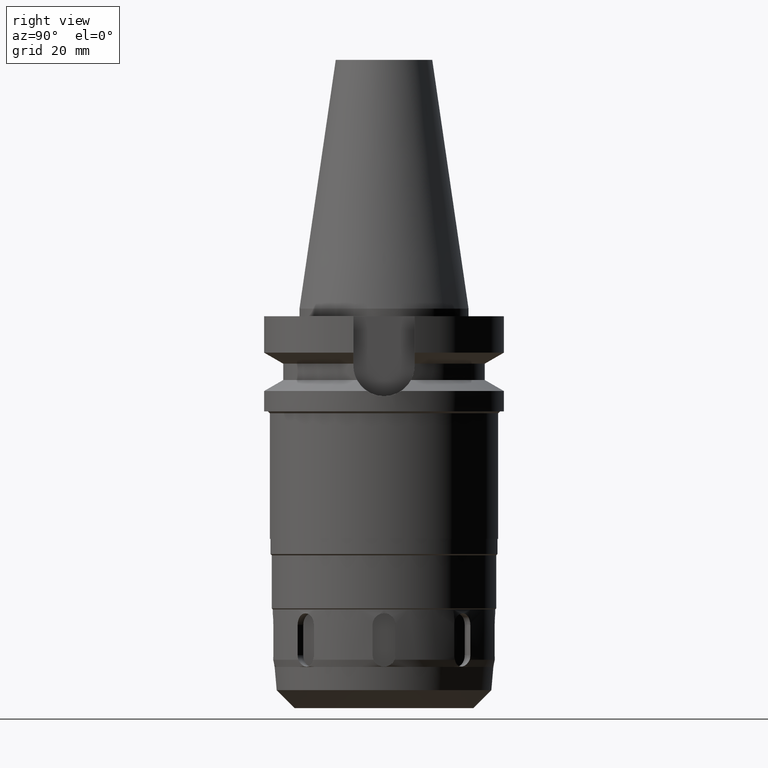
[diagram: clean part render]
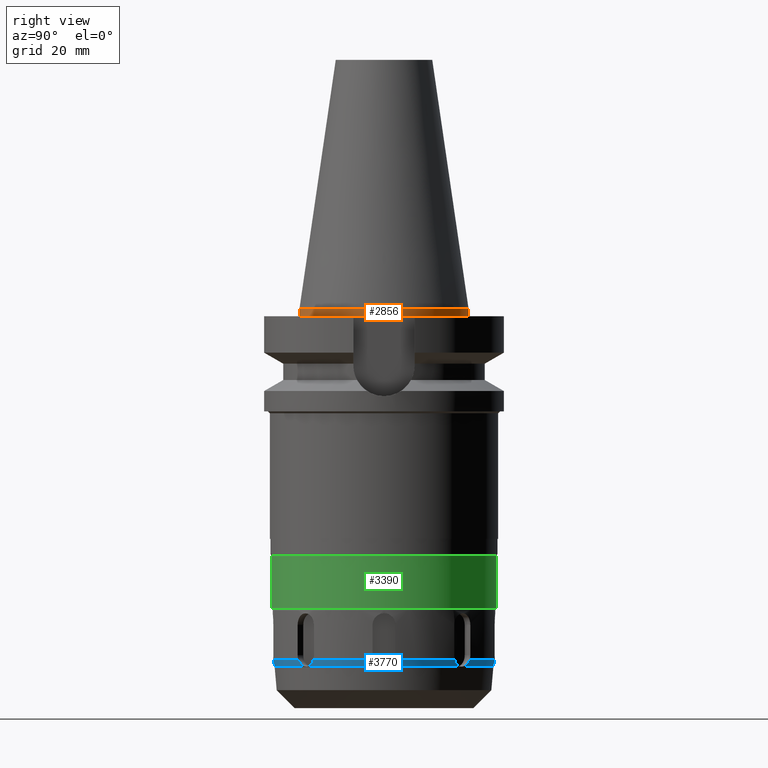
[diagram: same view with three faces highlighted in distinct colors, each labeled with its STEP entity id]
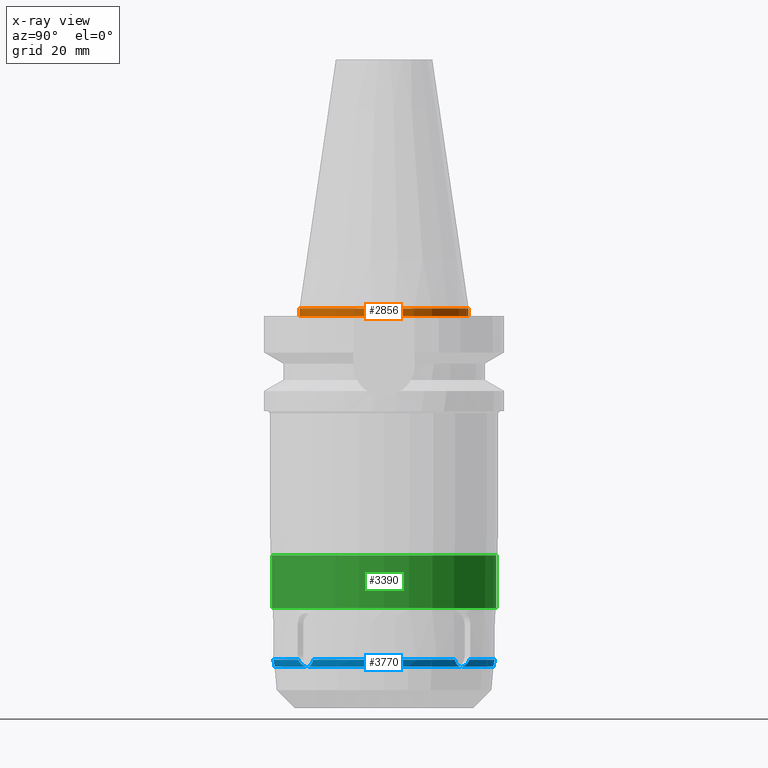
[diagram: x-ray of the same camera — body ghosted, the three highlighted faces saturated]
A machine part, right view with three faces highlighted in distinct colors.
The next image is the same camera in x-ray (body ghosted, the three faces saturated) — at least one of them is partly hidden behind the body in this view.
Their STEP definitions:

[orange] entity #2856 — the highlighted cylindrical surface (partial cylindrical patch) has radius 22.225 mm, axis along (0, 0, -1).
#72=CARTESIAN_POINT('',(0.E0,1.625106302469E-14,2.842170943040E-14));
#73=DIRECTION('',(0.E0,0.E0,-1.E0));
#74=DIRECTION('',(0.E0,1.E0,0.E0));
#75=AXIS2_PLACEMENT_3D('',#72,#73,#74);
#80=DIRECTION('',(0.E0,8.171241461241E-14,-1.E0));
#81=VECTOR('',#80,2.E0);
#82=CARTESIAN_POINT('',(0.E0,2.2225E1,6.394884621841E-14));
#83=LINE('',#82,#81);
#87=DIRECTION('',(0.E0,-8.704148513061E-14,-1.E0));
#88=VECTOR('',#87,2.E0);
#89=CARTESIAN_POINT('',(0.E0,-2.2225E1,6.394884621841E-14));
#90=LINE('',#89,#88);
#154=CARTESIAN_POINT('',(0.E0,2.129905713077E-14,-2.E0));
#155=DIRECTION('',(0.E0,0.E0,1.E0));
#156=DIRECTION('',(0.E0,-1.E0,0.E0));
#157=AXIS2_PLACEMENT_3D('',#154,#155,#156);
#2714=CARTESIAN_POINT('',(0.E0,-2.2225E1,-2.E0));
#2715=CARTESIAN_POINT('',(0.E0,2.2225E1,-2.E0));
#2716=VERTEX_POINT('',#2714);
#2717=VERTEX_POINT('',#2715);
#2718=CARTESIAN_POINT('',(0.E0,2.2225E1,6.394884621841E-14));
#2719=VERTEX_POINT('',#2718);
#2720=CARTESIAN_POINT('',(0.E0,-2.2225E1,6.394884621841E-14));
#2721=VERTEX_POINT('',#2720);
#2842=CARTESIAN_POINT('',(0.E0,2.129905713077E-14,7.392E1));
#2843=DIRECTION('',(0.E0,0.E0,-1.E0));
#2844=DIRECTION('',(0.E0,-1.E0,0.E0));
#2845=AXIS2_PLACEMENT_3D('',#2842,#2843,#2844);
#2846=CYLINDRICAL_SURFACE('',#2845,2.2225E1);
#2848=ORIENTED_EDGE('',*,*,#2847,.T.);
#2850=ORIENTED_EDGE('',*,*,#2849,.F.);
#2852=ORIENTED_EDGE('',*,*,#2851,.F.);
#2853=ORIENTED_EDGE('',*,*,#2835,.F.);
#2854=EDGE_LOOP('',(#2848,#2850,#2852,#2853));
#2855=FACE_OUTER_BOUND('',#2854,.F.);
#76=CIRCLE('',#75,2.2225E1);
#158=CIRCLE('',#157,2.2225E1);
#2835=EDGE_CURVE('',#2719,#2721,#76,.T.);
#2847=EDGE_CURVE('',#2719,#2717,#83,.T.);
#2849=EDGE_CURVE('',#2716,#2717,#158,.T.);
#2851=EDGE_CURVE('',#2721,#2716,#90,.T.);
#2856=ADVANCED_FACE('',(#2855),#2846,.T.);

[blue] entity #3770 — the highlighted conical surface has half-angle 15 deg.
#1212=DIRECTION('',(-1.461540232380E-13,2.588190450750E-1,-9.659258262964E-1));
#1213=VECTOR('',#1212,6.639877850089E-2);
#1214=CARTESIAN_POINT('',(3.171910622777E-14,-2.876769145362E1,-9.41E1));
#1215=LINE('',#1214,#1213);
#1408=CARTESIAN_POINT('',(3.171910622777E-14,-2.876769145362E1,-9.41E1));
#1409=CARTESIAN_POINT('',(2.916420865706E-1,-2.876769145362E1,-9.41E1));
#1410=CARTESIAN_POINT('',(8.733241856677E-1,-2.878149558825E1,
-9.401442141191E1));
#1411=CARTESIAN_POINT('',(1.668632335869E0,-2.884488101153E1,
-9.364325486813E1));
#1412=CARTESIAN_POINT('',(2.321573261760E0,-2.895365679301E1,
-9.306561245432E1));
#1413=CARTESIAN_POINT('',(2.632925642694E0,-2.905953456797E1,
-9.256734607412E1));
#1414=CARTESIAN_POINT('',(2.749621114391E0,-2.912051862817E1,
-9.229981930624E1));
#1419=CARTESIAN_POINT('',(0.E0,0.E0,-9.23E1));
#1420=DIRECTION('',(0.E0,0.E0,1.E0));
#1421=DIRECTION('',(9.400123039903E-2,-9.955720811089E-1,0.E0));
#1422=AXIS2_PLACEMENT_3D('',#1419,#1420,#1421);
#1427=CARTESIAN_POINT('',(1.864707272350E1,-2.253550994364E1,
-9.229999787879E1));
#1428=CARTESIAN_POINT('',(1.868687880771E1,-2.240867147278E1,
-9.256999462087E1));
#1429=CARTESIAN_POINT('',(1.883410983167E1,-2.211083703182E1,
-9.307157100933E1));
#1430=CARTESIAN_POINT('',(1.922056489597E1,-2.157132352922E1,
-9.364703445922E1));
#1431=CARTESIAN_POINT('',(1.973681403621E1,-2.096605792632E1,
-9.401576067502E1));
#1432=CARTESIAN_POINT('',(2.034316461003E1,-2.033059780289E1,
-9.414336519568E1));
#1433=CARTESIAN_POINT('',(2.097794582743E1,-1.972610029464E1,
-9.401070479389E1));
#1434=CARTESIAN_POINT('',(2.157985690144E1,-1.921393765261E1,
-9.363950793881E1));
#1435=CARTESIAN_POINT('',(2.211505136442E1,-1.883177418336E1,
-9.306511868998E1));
#1436=CARTESIAN_POINT('',(2.240986661198E1,-1.868646162105E1,
-9.256753119252E1));
#1437=CARTESIAN_POINT('',(2.253559193991E1,-1.864704043969E1,
-9.229981935066E1));
#1442=CARTESIAN_POINT('',(0.E0,0.E0,-9.23E1));
#1443=DIRECTION('',(0.E0,0.E0,1.E0));
#1444=DIRECTION('',(7.704446797801E-1,-6.375068590992E-1,0.E0));
#1445=AXIS2_PLACEMENT_3D('',#1442,#1443,#1444);
#1450=CARTESIAN_POINT('',(2.912048346437E1,-2.749540359240E0,
-9.229999789235E1));
#1451=CARTESIAN_POINT('',(2.905891428475E1,-2.631651267274E0,
-9.257011743052E1));
#1452=CARTESIAN_POINT('',(2.895241524558E1,-2.316777731762E0,
-9.307175807086E1));
#1453=CARTESIAN_POINT('',(2.884428176145E1,-1.662650606222E0,
-9.364670310950E1));
#1454=CARTESIAN_POINT('',(2.878128968941E1,-8.696478288814E-1,
-9.401567509124E1));
#1455=CARTESIAN_POINT('',(2.876068405268E1,8.998264901856E-3,
-9.414342455595E1));
#1456=CARTESIAN_POINT('',(2.878213121016E1,8.858342650023E-1,
-9.401055105426E1));
#1457=CARTESIAN_POINT('',(2.884564795449E1,1.673528184213E0,-9.363907298303E1));
#1458=CARTESIAN_POINT('',(2.895377739442E1,2.321545405982E0,-9.306513785773E1));
#1459=CARTESIAN_POINT('',(2.905948204926E1,2.632825157140E0,-9.256757649385E1));
#1460=CARTESIAN_POINT('',(2.912051862278E1,2.749621134106E0,-9.229981935225E1));
#1465=CARTESIAN_POINT('',(0.E0,0.E0,-9.23E1));
#1466=DIRECTION('',(0.E0,0.E0,1.E0));
#1467=DIRECTION('',(9.955720807236E-1,9.400123447959E-2,0.E0));
#1468=AXIS2_PLACEMENT_3D('',#1465,#1466,#1467);
#1473=CARTESIAN_POINT('',(2.253550996223E1,1.864707269594E1,-9.229999789242E1));
#1474=CARTESIAN_POINT('',(2.240868316786E1,1.868687511843E1,-9.256996977265E1));
#1475=CARTESIAN_POINT('',(2.211088218241E1,1.883408746226E1,-9.307149416766E1));
#1476=CARTESIAN_POINT('',(2.157148658476E1,1.922044002872E1,-9.364688500609E1));
#1477=CARTESIAN_POINT('',(2.096630127031E1,1.973659417205E1,-9.401565914123E1));
#1478=CARTESIAN_POINT('',(2.033084409574E1,2.034291792647E1,-9.414336692521E1));
#1479=CARTESIAN_POINT('',(1.972631014839E1,2.097771272904E1,-9.401080512013E1));
#1480=CARTESIAN_POINT('',(1.921404983291E1,2.157970928106E1,-9.363964603724E1));
#1481=CARTESIAN_POINT('',(1.883178963123E1,2.211501791657E1,-9.306517873436E1));
#1482=CARTESIAN_POINT('',(1.868646415396E1,2.240985859401E1,-9.256754821689E1));
#1483=CARTESIAN_POINT('',(1.864704046771E1,2.253559192112E1,-9.229981933434E1));
#1488=CARTESIAN_POINT('',(0.E0,0.E0,-9.23E1));
#1489=DIRECTION('',(0.E0,0.E0,1.E0));
#1490=DIRECTION('',(6.375068622919E-1,7.704446771383E-1,0.E0));
#1491=AXIS2_PLACEMENT_3D('',#1488,#1489,#1490);
#1496=CARTESIAN_POINT('',(2.749540325158E0,2.912048347092E1,-9.229999787978E1));
#1497=CARTESIAN_POINT('',(2.632784061556E0,2.905950592360E1,-9.256752177581E1));
#1498=CARTESIAN_POINT('',(2.320968278700E0,2.895335639821E1,-9.306696334785E1));
#1499=CARTESIAN_POINT('',(1.663259646725E0,2.884413819264E1,-9.364736411842E1));
#1500=CARTESIAN_POINT('',(8.646143369824E-1,2.878111251024E1,
-9.401678596995E1));
#1501=CARTESIAN_POINT('',(2.878474372009E-1,2.876769145362E1,-9.41E1));
#1502=CARTESIAN_POINT('',(0.E0,2.876769145362E1,-9.41E1));
#1507=DIRECTION('',(1.765450329034E-14,-2.588190450750E-1,-9.659258262964E-1));
#1508=VECTOR('',#1507,6.639877850089E-2);
#1509=CARTESIAN_POINT('',(0.E0,2.876769145362E1,-9.41E1));
#1510=LINE('',#1509,#1508);
#2124=CARTESIAN_POINT('',(0.E0,0.E0,-9.416413629499E1));
#2125=DIRECTION('',(0.E0,0.E0,1.E0));
#2126=DIRECTION('',(0.E0,-1.E0,0.E0));
#2127=AXIS2_PLACEMENT_3D('',#2124,#2125,#2126);
#2497=CARTESIAN_POINT('',(0.E0,2.875050618518E1,-9.416413629499E1));
#2498=VERTEX_POINT('',#2497);
#2499=CARTESIAN_POINT('',(4.755023676091E-14,-2.875050618518E1,
-9.416413629499E1));
#2500=VERTEX_POINT('',#2499);
#2501=VERTEX_POINT('',#1408);
#2502=VERTEX_POINT('',#1414);
#2503=CARTESIAN_POINT('',(1.864708239233E1,-2.253550128695E1,-9.23E1));
#2504=VERTEX_POINT('',#2503);
#2505=VERTEX_POINT('',#1437);
#2506=CARTESIAN_POINT('',(2.912048417547E1,-2.749527484227E0,-9.23E1));
#2507=VERTEX_POINT('',#2506);
#2508=VERTEX_POINT('',#1460);
#2509=CARTESIAN_POINT('',(2.253550136107E1,1.864708230275E1,-9.23E1));
#2510=VERTEX_POINT('',#2509);
#2511=VERTEX_POINT('',#1483);
#2512=CARTESIAN_POINT('',(2.749527365517E0,2.912048418668E1,-9.23E1));
#2513=VERTEX_POINT('',#2512);
#2514=VERTEX_POINT('',#1502);
#3742=CARTESIAN_POINT('',(0.E0,0.E0,-9.323206814750E1));
#3743=DIRECTION('',(0.E0,0.E0,1.E0));
#3744=DIRECTION('',(0.E0,1.E0,0.E0));
#3745=AXIS2_PLACEMENT_3D('',#3742,#3743,#3744);
#3746=CONICAL_SURFACE('',#3745,2.900025309259E1,1.5E1);
#3747=ORIENTED_EDGE('',*,*,#3725,.T.);
#3749=ORIENTED_EDGE('',*,*,#3748,.T.);
#3751=ORIENTED_EDGE('',*,*,#3750,.T.);
#3753=ORIENTED_EDGE('',*,*,#3752,.T.);
#3755=ORIENTED_EDGE('',*,*,#3754,.T.);
#3757=ORIENTED_EDGE('',*,*,#3756,.T.);
#3759=ORIENTED_EDGE('',*,*,#3758,.T.);
#3761=ORIENTED_EDGE('',*,*,#3760,.T.);
#3763=ORIENTED_EDGE('',*,*,#3762,.T.);
#3764=ORIENTED_EDGE('',*,*,#3558,.T.);
#3766=ORIENTED_EDGE('',*,*,#3765,.F.);
#3767=ORIENTED_EDGE('',*,*,#3554,.F.);
#3768=EDGE_LOOP('',(#3747,#3749,#3751,#3753,#3755,#3757,#3759,#3761,#3763,#3764,
#3766,#3767));
#3769=FACE_OUTER_BOUND('',#3768,.F.);
#1415=B_SPLINE_CURVE_WITH_KNOTS('',3,(#1408,#1409,#1410,#1411,#1412,#1413,
#1414),.UNSPECIFIED.,.F.,.F.,(4,1,1,1,4),(0.E0,2.5E-1,5.E-1,7.5E-1,1.E0),
.UNSPECIFIED.);
#1423=CIRCLE('',#1422,2.925E1);
#1438=B_SPLINE_CURVE_WITH_KNOTS('',3,(#1427,#1428,#1429,#1430,#1431,#1432,#1433,
#1434,#1435,#1436,#1437),.UNSPECIFIED.,.F.,.F.,(4,1,1,1,1,1,1,1,4),(0.E0,
1.25E-1,2.5E-1,3.75E-1,5.E-1,6.25E-1,7.5E-1,8.75E-1,1.E0),.UNSPECIFIED.);
#1446=CIRCLE('',#1445,2.925E1);
#1461=B_SPLINE_CURVE_WITH_KNOTS('',3,(#1450,#1451,#1452,#1453,#1454,#1455,#1456,
#1457,#1458,#1459,#1460),.UNSPECIFIED.,.F.,.F.,(4,1,1,1,1,1,1,1,4),(0.E0,
1.25E-1,2.5E-1,3.75E-1,5.E-1,6.25E-1,7.5E-1,8.75E-1,1.E0),.UNSPECIFIED.);
#1469=CIRCLE('',#1468,2.925E1);
#1484=B_SPLINE_CURVE_WITH_KNOTS('',3,(#1473,#1474,#1475,#1476,#1477,#1478,#1479,
#1480,#1481,#1482,#1483),.UNSPECIFIED.,.F.,.F.,(4,1,1,1,1,1,1,1,4),(0.E0,
1.25E-1,2.5E-1,3.75E-1,5.E-1,6.25E-1,7.5E-1,8.75E-1,1.E0),.UNSPECIFIED.);
#1492=CIRCLE('',#1491,2.925E1);
#1503=B_SPLINE_CURVE_WITH_KNOTS('',3,(#1496,#1497,#1498,#1499,#1500,#1501,
#1502),.UNSPECIFIED.,.F.,.F.,(4,1,1,1,4),(0.E0,2.5E-1,5.E-1,7.5E-1,1.E0),
.UNSPECIFIED.);
#2128=CIRCLE('',#2127,2.875050618518E1);
#3554=EDGE_CURVE('',#2501,#2500,#1215,.T.);
#3558=EDGE_CURVE('',#2514,#2498,#1510,.T.);
#3725=EDGE_CURVE('',#2501,#2502,#1415,.T.);
#3748=EDGE_CURVE('',#2502,#2504,#1423,.T.);
#3750=EDGE_CURVE('',#2504,#2505,#1438,.T.);
#3752=EDGE_CURVE('',#2505,#2507,#1446,.T.);
#3754=EDGE_CURVE('',#2507,#2508,#1461,.T.);
#3756=EDGE_CURVE('',#2508,#2510,#1469,.T.);
#3758=EDGE_CURVE('',#2510,#2511,#1484,.T.);
#3760=EDGE_CURVE('',#2511,#2513,#1492,.T.);
#3762=EDGE_CURVE('',#2513,#2514,#1503,.T.);
#3765=EDGE_CURVE('',#2500,#2498,#2128,.T.);
#3770=ADVANCED_FACE('',(#3769),#3746,.T.);

[green] entity #3390 — the highlighted cylindrical surface (partial cylindrical patch) has radius 29.5 mm, axis along (0, 0, -1).
#758=CARTESIAN_POINT('',(0.E0,0.E0,-6.485E1));
#759=DIRECTION('',(0.E0,0.E0,-1.E0));
#760=DIRECTION('',(0.E0,1.E0,0.E0));
#761=AXIS2_PLACEMENT_3D('',#758,#759,#760);
#797=DIRECTION('',(0.E0,0.E0,-1.E0));
#798=VECTOR('',#797,1.395E1);
#799=CARTESIAN_POINT('',(0.E0,-2.95E1,-6.485E1));
#800=LINE('',#799,#798);
#804=DIRECTION('',(0.E0,0.E0,-1.E0));
#805=VECTOR('',#804,1.395E1);
#806=CARTESIAN_POINT('',(0.E0,2.95E1,-6.485E1));
#807=LINE('',#806,#805);
#826=CARTESIAN_POINT('',(0.E0,0.E0,-7.88E1));
#827=DIRECTION('',(0.E0,0.E0,1.E0));
#828=DIRECTION('',(0.E0,-1.E0,0.E0));
#829=AXIS2_PLACEMENT_3D('',#826,#827,#828);
#2613=CARTESIAN_POINT('',(0.E0,2.95E1,-7.88E1));
#2614=VERTEX_POINT('',#2613);
#2615=CARTESIAN_POINT('',(0.E0,-2.95E1,-7.88E1));
#2616=VERTEX_POINT('',#2615);
#2617=CARTESIAN_POINT('',(0.E0,2.95E1,-6.485E1));
#2618=VERTEX_POINT('',#2617);
#2619=CARTESIAN_POINT('',(0.E0,-2.95E1,-6.485E1));
#2620=VERTEX_POINT('',#2619);
#3378=CARTESIAN_POINT('',(0.E0,2.129905713077E-14,7.392E1));
#3379=DIRECTION('',(0.E0,0.E0,-1.E0));
#3380=DIRECTION('',(0.E0,-1.E0,0.E0));
#3381=AXIS2_PLACEMENT_3D('',#3378,#3379,#3380);
#3382=CYLINDRICAL_SURFACE('',#3381,2.95E1);
#3383=ORIENTED_EDGE('',*,*,#3368,.T.);
#3385=ORIENTED_EDGE('',*,*,#3384,.F.);
#3386=ORIENTED_EDGE('',*,*,#3371,.F.);
#3387=ORIENTED_EDGE('',*,*,#3342,.F.);
#3388=EDGE_LOOP('',(#3383,#3385,#3386,#3387));
#3389=FACE_OUTER_BOUND('',#3388,.F.);
#762=CIRCLE('',#761,2.95E1);
#830=CIRCLE('',#829,2.95E1);
#3342=EDGE_CURVE('',#2618,#2620,#762,.T.);
#3368=EDGE_CURVE('',#2618,#2614,#807,.T.);
#3371=EDGE_CURVE('',#2620,#2616,#800,.T.);
#3384=EDGE_CURVE('',#2616,#2614,#830,.T.);
#3390=ADVANCED_FACE('',(#3389),#3382,.T.);